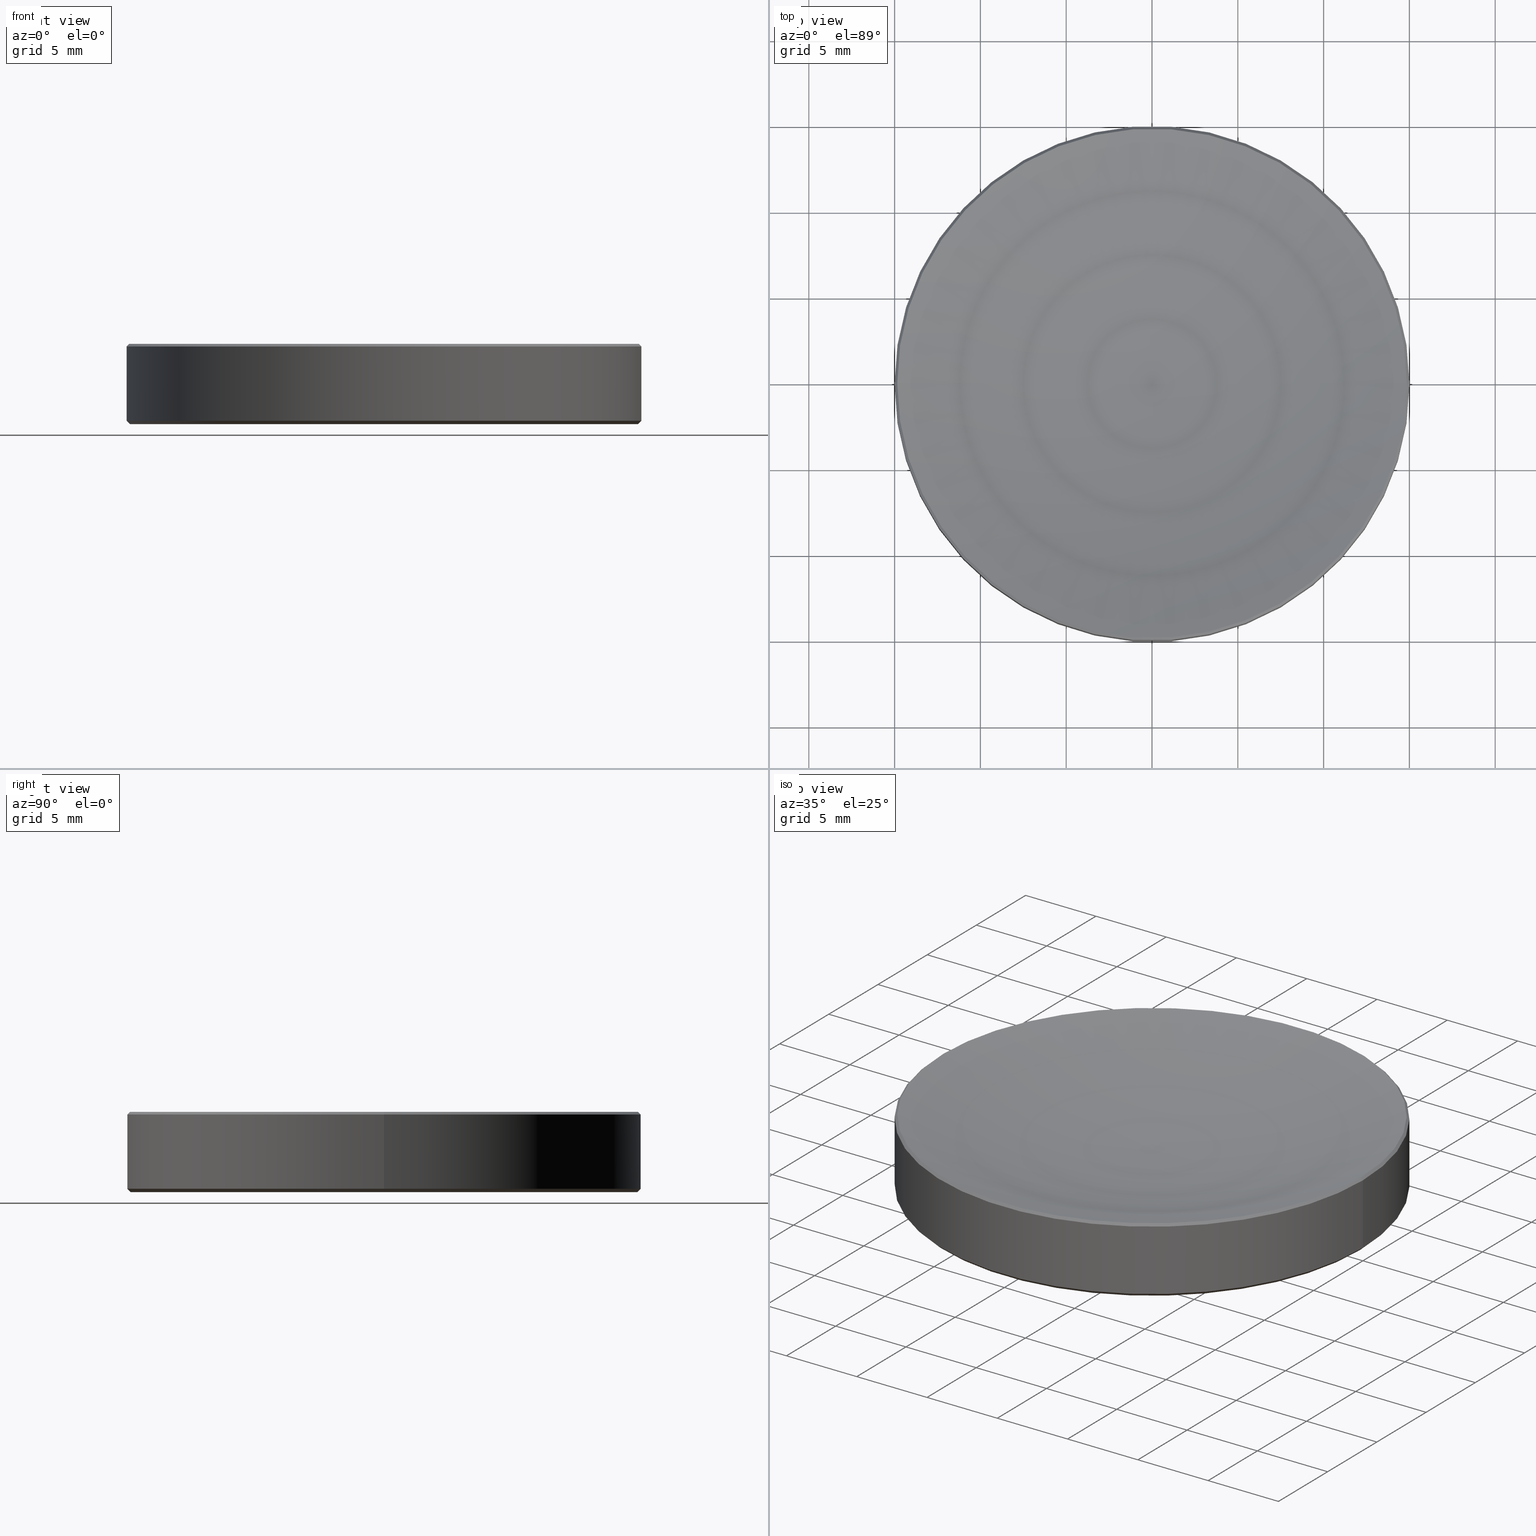
[diagram: canonical four-view strip — front | top / right | iso, engineering-drawing reading convention]
A machine part, canonical four-view strip (front | top / right | iso — engineering-drawing reading convention). The complete STEP part file that produces these views, byte-faithful:
ISO-10303-21;
HEADER;
FILE_DESCRIPTION (( 'STEP AP214' ),
    '1' );
FILE_NAME ('GL13-030-100.STEP',
    '2022-10-25T13:46:39',
    ( '' ),
    ( '' ),
    'SwSTEP 2.0',
    'SolidWorks 2022',
    '' );
FILE_SCHEMA (( 'AUTOMOTIVE_DESIGN' ));
ENDSEC;

DATA;
#1 = DIRECTION ( 'NONE',  ( 0.7071067811865036079, 8.659560562354395447E-17, -0.7071067811865914265 ) ) ;
#2 = CIRCLE ( 'NONE', #157, 15.00000000000000000 ) ;
#3 = FACE_OUTER_BOUND ( 'NONE', #122, .T. ) ;
#4 = CARTESIAN_POINT ( 'NONE',  ( 0.000000000000000000, 0.000000000000000000, 0.1999999999999996503 ) ) ;
#5 = AXIS2_PLACEMENT_3D ( 'NONE', #37, #16, #208 ) ;
#6 = EDGE_CURVE ( 'NONE', #165, #242, #209, .T. ) ;
#7 = CARTESIAN_POINT ( 'NONE',  ( 15.00000000000000000, 0.000000000000000000, 0.1999999999999996503 ) ) ;
#8 = DIRECTION ( 'NONE',  ( 0.7071067811865474617, 0.000000000000000000, 0.7071067811865474617 ) ) ;
#9 = ORIENTED_EDGE ( 'NONE', *, *, #105, .F. ) ;
#10 = FILL_AREA_STYLE_COLOUR ( '', #76 ) ;
#11 = UNCERTAINTY_MEASURE_WITH_UNIT (LENGTH_MEASURE( 1.000000000000000082E-05 ), #23, 'distance_accuracy_value', 'NONE');
#12 = CARTESIAN_POINT ( 'NONE',  ( 0.000000000000000000, 0.000000000000000000, 2.500000000000000000 ) ) ;
#13 = AXIS2_PLACEMENT_3D ( 'NONE', #213, #68, #85 ) ;
#14 = DIRECTION ( 'NONE',  ( -0.000000000000000000, -0.000000000000000000, 1.000000000000000000 ) ) ;
#15 = AXIS2_PLACEMENT_3D ( 'NONE', #238, #198, #199 ) ;
#16 = DIRECTION ( 'NONE',  ( -0.000000000000000000, -0.000000000000000000, 1.000000000000000000 ) ) ;
#17 = ORIENTED_EDGE ( 'NONE', *, *, #228, .T. ) ;
#18 = EDGE_LOOP ( 'NONE', ( #9, #176, #17 ) ) ;
#19 = EDGE_CURVE ( 'NONE', #74, #169, #34, .T. ) ;
#20 = CARTESIAN_POINT ( 'NONE',  ( 14.84640391126098180, 0.000000000000000000, 4.683596088739042429 ) ) ;
#21 = CIRCLE ( 'NONE', #62, 15.00000000000000000 ) ;
#22 = DIRECTION ( 'NONE',  ( 0.000000000000000000, -1.000000000000000000, 0.000000000000000000 ) ) ;
#23 =( LENGTH_UNIT ( ) NAMED_UNIT ( * ) SI_UNIT ( .MILLI., .METRE. ) );
#24 = DIRECTION ( 'NONE',  ( -1.000000000000000000, 0.000000000000000000, 0.000000000000000000 ) ) ;
#25 = PRESENTATION_LAYER_ASSIGNMENT (  '', '', ( #215 ) ) ;
#26 = SURFACE_SIDE_STYLE ('',( #49 ) ) ;
#27 = EDGE_CURVE ( 'NONE', #169, #91, #210, .T. ) ;
#28 =( NAMED_UNIT ( * ) SI_UNIT ( $, .STERADIAN. ) SOLID_ANGLE_UNIT ( ) );
#29 = MECHANICAL_DESIGN_GEOMETRIC_PRESENTATION_REPRESENTATION (  '', ( #263 ), #100 ) ;
#30 = ORIENTED_EDGE ( 'NONE', *, *, #214, .F. ) ;
#31 = DIRECTION ( 'NONE',  ( -0.000000000000000000, -0.000000000000000000, 1.000000000000000000 ) ) ;
#32 = DIRECTION ( 'NONE',  ( 0.000000000000000000, 0.000000000000000000, 1.000000000000000000 ) ) ;
#33 = SHAPE_DEFINITION_REPRESENTATION ( #180, #46 ) ;
#34 = CIRCLE ( 'NONE', #70, 14.80000000000000071 ) ;
#35 = ORIENTED_EDGE ( 'NONE', *, *, #6, .T. ) ;
#36 = ADVANCED_FACE ( 'NONE', ( #226 ), #125, .T. ) ;
#37 = CARTESIAN_POINT ( 'NONE',  ( 0.000000000000000000, 0.000000000000000000, 4.683596088739042429 ) ) ;
#38 = ORIENTED_EDGE ( 'NONE', *, *, #197, .F. ) ;
#39 = ORIENTED_EDGE ( 'NONE', *, *, #137, .F. ) ;
#40 = COLOUR_RGB ( '',1.000000000000000000, 1.000000000000000000, 1.000000000000000000 ) ;
#41 = EDGE_CURVE ( 'NONE', #91, #80, #21, .T. ) ;
#42 = VERTEX_POINT ( 'NONE', #262 ) ;
#43 = DIRECTION ( 'NONE',  ( -0.000000000000000000, -0.000000000000000000, 1.000000000000000000 ) ) ;
#44 = CARTESIAN_POINT ( 'NONE',  ( 0.000000000000000000, 0.000000000000000000, 4.529999999999985150 ) ) ;
#45 = CARTESIAN_POINT ( 'NONE',  ( 0.01138314681477931023, -1.394033431094387055E-18, 54.13999874539084800 ) ) ;
#46 = ADVANCED_BREP_SHAPE_REPRESENTATION ( 'GL13-030-100', ( #159, #250 ), #217 ) ;
#47 = CIRCLE ( 'NONE', #232, 51.64000000000000057 ) ;
#48 = AXIS2_PLACEMENT_3D ( 'NONE', #52, #138, #51 ) ;
#49 = SURFACE_STYLE_FILL_AREA ( #95 ) ;
#50 =( LENGTH_UNIT ( ) NAMED_UNIT ( * ) SI_UNIT ( .MILLI., .METRE. ) );
#51 = DIRECTION ( 'NONE',  ( 1.000000000000000000, 0.000000000000000000, 0.000000000000000000 ) ) ;
#52 = CARTESIAN_POINT ( 'NONE',  ( 0.000000000000000000, 0.000000000000000000, 54.13999874539084800 ) ) ;
#53 = PRODUCT_DEFINITION ( 'δ֪', '', #56, #92 ) ;
#54 = AXIS2_PLACEMENT_3D ( 'NONE', #181, #31, #115 ) ;
#55 = PRODUCT_CONTEXT ( 'NONE', #207, 'mechanical' ) ;
#56 = PRODUCT_DEFINITION_FORMATION_WITH_SPECIFIED_SOURCE ( '�κ�', '', #79, .NOT_KNOWN. ) ;
#57 = ORIENTED_EDGE ( 'NONE', *, *, #41, .T. ) ;
#58 = EDGE_CURVE ( 'NONE', #42, #99, #77, .T. ) ;
#59 = DIRECTION ( 'NONE',  ( -0.7071067811865036079, 0.000000000000000000, -0.7071067811865914265 ) ) ;
#60 = EDGE_LOOP ( 'NONE', ( #164, #264, #187, #124 ) ) ;
#61 = CARTESIAN_POINT ( 'NONE',  ( -15.00000000000000000, 1.836970198721029589E-15, 0.1999999999999996503 ) ) ;
#62 = AXIS2_PLACEMENT_3D ( 'NONE', #147, #75, #222 ) ;
#63 = AXIS2_PLACEMENT_3D ( 'NONE', #44, #154, #24 ) ;
#64 = CARTESIAN_POINT ( 'NONE',  ( -15.00000000000000000, 1.836970198721029589E-15, 4.529999999999985150 ) ) ;
#65 = AXIS2_PLACEMENT_3D ( 'NONE', #175, #257, #179 ) ;
#66 = DIRECTION ( 'NONE',  ( 1.000000000000000000, 0.000000000000000000, 0.000000000000000000 ) ) ;
#67 = DIRECTION ( 'NONE',  ( -1.000000000000000000, 1.224646799147353207E-16, 0.000000000000000000 ) ) ;
#68 = DIRECTION ( 'NONE',  ( 0.000000000000000000, 0.000000000000000000, -1.000000000000000000 ) ) ;
#69 = EDGE_CURVE ( 'NONE', #42, #165, #123, .T. ) ;
#70 = AXIS2_PLACEMENT_3D ( 'NONE', #167, #246, #245 ) ;
#71 = DIRECTION ( 'NONE',  ( -0.000000000000000000, -0.000000000000000000, 1.000000000000000000 ) ) ;
#72 = PLANE ( 'NONE',  #15 ) ;
#73 = AXIS2_PLACEMENT_3D ( 'NONE', #108, #87, #212 ) ;
#74 = VERTEX_POINT ( 'NONE', #101 ) ;
#75 = DIRECTION ( 'NONE',  ( -0.000000000000000000, -0.000000000000000000, 1.000000000000000000 ) ) ;
#76 = COLOUR_RGB ( '',1.000000000000000000, 1.000000000000000000, 1.000000000000000000 ) ;
#77 = LINE ( 'NONE', #243, #133 ) ;
#78 = ORIENTED_EDGE ( 'NONE', *, *, #168, .T. ) ;
#79 = PRODUCT ( 'GL13-030-100', 'GL13-030-100', '', ( #55 ) ) ;
#80 = VERTEX_POINT ( 'NONE', #171 ) ;
#81 = ORIENTED_EDGE ( 'NONE', *, *, #214, .T. ) ;
#82 = SURFACE_SIDE_STYLE ('',( #172 ) ) ;
#83 = VECTOR ( 'NONE', #8, 1000.000000000000114 ) ;
#84 = ADVANCED_FACE ( 'NONE', ( #253 ), #203, .T. ) ;
#85 = DIRECTION ( 'NONE',  ( -1.000000000000000000, 0.000000000000000000, 0.000000000000000000 ) ) ;
#86 = FACE_OUTER_BOUND ( 'NONE', #186, .T. ) ;
#87 = DIRECTION ( 'NONE',  ( -0.000000000000000000, -0.000000000000000000, 1.000000000000000000 ) ) ;
#88 = DIRECTION ( 'NONE',  ( -0.000000000000000000, -0.000000000000000000, 1.000000000000000000 ) ) ;
#89 = ADVANCED_FACE ( 'NONE', ( #251 ), #110, .T. ) ;
#90 =( NAMED_UNIT ( * ) PLANE_ANGLE_UNIT ( ) SI_UNIT ( $, .RADIAN. ) );
#91 = VERTEX_POINT ( 'NONE', #249 ) ;
#92 = PRODUCT_DEFINITION_CONTEXT ( 'detailed design', #218, 'design' ) ;
#93 = DIRECTION ( 'NONE',  ( 1.000000000000000000, 0.000000000000000000, 0.000000000000000000 ) ) ;
#94 = ORIENTED_EDGE ( 'NONE', *, *, #58, .F. ) ;
#95 = FILL_AREA_STYLE ('',( #10 ) ) ;
#96 = DIRECTION ( 'NONE',  ( -1.000000000000000000, 0.000000000000000000, 0.000000000000000000 ) ) ;
#97 = EDGE_CURVE ( 'NONE', #91, #99, #211, .T. ) ;
#98 = DIRECTION ( 'NONE',  ( 1.000000000000000000, 0.000000000000000000, 0.000000000000000000 ) ) ;
#99 = VERTEX_POINT ( 'NONE', #64 ) ;
#100 =( GEOMETRIC_REPRESENTATION_CONTEXT ( 3 ) GLOBAL_UNCERTAINTY_ASSIGNED_CONTEXT ( ( #259 ) ) GLOBAL_UNIT_ASSIGNED_CONTEXT ( ( #258, #177, #28 ) ) REPRESENTATION_CONTEXT ( 'NONE', 'WORKASPACE' ) );
#101 = CARTESIAN_POINT ( 'NONE',  ( 14.80000000000000071, 0.000000000000000000, 9.184850993605147944E-16 ) ) ;
#102 = ORIENTED_EDGE ( 'NONE', *, *, #6, .F. ) ;
#103 = ORIENTED_EDGE ( 'NONE', *, *, #205, .T. ) ;
#104 = LINE ( 'NONE', #7, #83 ) ;
#105 = EDGE_CURVE ( 'NONE', #139, #42, #47, .T. ) ;
#106 = CARTESIAN_POINT ( 'NONE',  ( -14.80000000000000071, 1.824723730729555837E-15, 9.184850993605147944E-16 ) ) ;
#107 = CLOSED_SHELL ( 'NONE', ( #239, #116, #89, #185, #155, #36, #248, #84, #170 ) ) ;
#108 = CARTESIAN_POINT ( 'NONE',  ( 0.000000000000000000, 0.000000000000000000, 54.13999874539084800 ) ) ;
#109 = DIRECTION ( 'NONE',  ( 1.000000000000000000, 0.000000000000000000, 0.000000000000000000 ) ) ;
#110 = CYLINDRICAL_SURFACE ( 'NONE', #202, 15.00000000000000000 ) ;
#111 = MECHANICAL_DESIGN_GEOMETRIC_PRESENTATION_REPRESENTATION (  '', ( #215 ), #261 ) ;
#112 = CARTESIAN_POINT ( 'NONE',  ( 15.00000000000000000, 0.000000000000000000, 4.529999999999985150 ) ) ;
#113 = PRESENTATION_LAYER_ASSIGNMENT (  '', '', ( #263 ) ) ;
#114 = FACE_OUTER_BOUND ( 'NONE', #156, .T. ) ;
#115 = DIRECTION ( 'NONE',  ( 1.000000000000000000, 0.000000000000000000, 0.000000000000000000 ) ) ;
#116 = ADVANCED_FACE ( 'NONE', ( #86 ), #260, .T. ) ;
#117 = DIRECTION ( 'NONE',  ( 1.000000000000000000, 0.000000000000000000, 0.000000000000000000 ) ) ;
#118 = AXIS2_PLACEMENT_3D ( 'NONE', #220, #71, #93 ) ;
#119 = UNCERTAINTY_MEASURE_WITH_UNIT (LENGTH_MEASURE( 1.000000000000000082E-05 ), #50, 'distance_accuracy_value', 'NONE');
#120 = ORIENTED_EDGE ( 'NONE', *, *, #105, .T. ) ;
#121 = ORIENTED_EDGE ( 'NONE', *, *, #69, .T. ) ;
#122 = EDGE_LOOP ( 'NONE', ( #102, #145, #136, #30 ) ) ;
#123 = CIRCLE ( 'NONE', #5, 14.84640391126096759 ) ;
#124 = ORIENTED_EDGE ( 'NONE', *, *, #41, .F. ) ;
#125 = CYLINDRICAL_SURFACE ( 'NONE', #178, 15.00000000000000000 ) ;
#126 = VECTOR ( 'NONE', #160, 1000.000000000000000 ) ;
#127 = CARTESIAN_POINT ( 'NONE',  ( 0.000000000000000000, 0.000000000000000000, 2.500000000000000000 ) ) ;
#128 = PRESENTATION_STYLE_ASSIGNMENT (( #227 ) ) ;
#129 = FACE_OUTER_BOUND ( 'NONE', #18, .T. ) ;
#130 = DIRECTION ( 'NONE',  ( 1.000000000000000000, 0.000000000000000000, 0.000000000000000000 ) ) ;
#131 = CARTESIAN_POINT ( 'NONE',  ( 15.00000000000000000, 0.000000000000000000, 2.500000000000000000 ) ) ;
#132 = VECTOR ( 'NONE', #152, 1000.000000000000000 ) ;
#133 = VECTOR ( 'NONE', #59, 1000.000000000000000 ) ;
#134 = AXIS2_PLACEMENT_3D ( 'NONE', #190, #254, #130 ) ;
#135 = SURFACE_STYLE_USAGE ( .BOTH. , #26 ) ;
#136 = ORIENTED_EDGE ( 'NONE', *, *, #58, .T. ) ;
#137 = EDGE_CURVE ( 'NONE', #99, #242, #194, .T. ) ;
#138 = DIRECTION ( 'NONE',  ( -0.000000000000000000, -0.000000000000000000, 1.000000000000000000 ) ) ;
#139 = VERTEX_POINT ( 'NONE', #150 ) ;
#140 =( NAMED_UNIT ( * ) SI_UNIT ( $, .STERADIAN. ) SOLID_ANGLE_UNIT ( ) );
#141 = LINE ( 'NONE', #131, #126 ) ;
#142 = ORIENTED_EDGE ( 'NONE', *, *, #205, .F. ) ;
#143 = ORIENTED_EDGE ( 'NONE', *, *, #97, .F. ) ;
#144 = VECTOR ( 'NONE', #221, 1000.000000000000114 ) ;
#145 = ORIENTED_EDGE ( 'NONE', *, *, #69, .F. ) ;
#146 = ORIENTED_EDGE ( 'NONE', *, *, #27, .T. ) ;
#147 = CARTESIAN_POINT ( 'NONE',  ( 0.000000000000000000, 0.000000000000000000, 0.1999999999999996503 ) ) ;
#148 = EDGE_LOOP ( 'NONE', ( #103, #224, #265, #206 ) ) ;
#149 = EDGE_CURVE ( 'NONE', #139, #165, #225, .T. ) ;
#150 = CARTESIAN_POINT ( 'NONE',  ( 0.000000000000000000, 0.000000000000000000, 2.500000000000000000 ) ) ;
#151 = DIRECTION ( 'NONE',  ( -0.000000000000000000, -0.000000000000000000, 1.000000000000000000 ) ) ;
#152 = DIRECTION ( 'NONE',  ( -0.000000000000000000, -0.000000000000000000, 1.000000000000000000 ) ) ;
#153 = CARTESIAN_POINT ( 'NONE',  ( -0.01138314681477931023, 0.000000000000000000, 54.13999874539084800 ) ) ;
#154 = DIRECTION ( 'NONE',  ( 0.000000000000000000, 0.000000000000000000, -1.000000000000000000 ) ) ;
#155 = ADVANCED_FACE ( 'NONE', ( #129 ), #196, .F. ) ;
#156 = EDGE_LOOP ( 'NONE', ( #188, #78 ) ) ;
#157 = AXIS2_PLACEMENT_3D ( 'NONE', #236, #219, #96 ) ;
#158 = FACE_OUTER_BOUND ( 'NONE', #189, .T. ) ;
#159 = MANIFOLD_SOLID_BREP ( '����2', #107 ) ;
#160 = DIRECTION ( 'NONE',  ( -0.000000000000000000, -0.000000000000000000, 1.000000000000000000 ) ) ;
#161 = AXIS2_PLACEMENT_3D ( 'NONE', #230, #151, #173 ) ;
#162 = TOROIDAL_SURFACE ( 'NONE', #48, -0.01138314681477931023, 51.64000000000000057 ) ;
#163 = PRODUCT_RELATED_PRODUCT_CATEGORY ( 'part', '', ( #79 ) ) ;
#164 = ORIENTED_EDGE ( 'NONE', *, *, #27, .F. ) ;
#165 = VERTEX_POINT ( 'NONE', #20 ) ;
#166 = CARTESIAN_POINT ( 'NONE',  ( 14.84640391126096937, 1.818160102877448966E-15, 4.683596088739035324 ) ) ;
#167 = CARTESIAN_POINT ( 'NONE',  ( 0.000000000000000000, 0.000000000000000000, 9.184850993605147944E-16 ) ) ;
#168 = EDGE_CURVE ( 'NONE', #169, #74, #247, .T. ) ;
#169 = VERTEX_POINT ( 'NONE', #106 ) ;
#170 = ADVANCED_FACE ( 'NONE', ( #3 ), #235, .T. ) ;
#171 = CARTESIAN_POINT ( 'NONE',  ( 15.00000000000000000, 0.000000000000000000, 0.1999999999999996503 ) ) ;
#172 = SURFACE_STYLE_FILL_AREA ( #174 ) ;
#173 = DIRECTION ( 'NONE',  ( 1.000000000000000000, 0.000000000000000000, 0.000000000000000000 ) ) ;
#174 = FILL_AREA_STYLE ('',( #192 ) ) ;
#175 = CARTESIAN_POINT ( 'NONE',  ( 0.000000000000000000, 0.000000000000000000, 4.683596088739035324 ) ) ;
#176 = ORIENTED_EDGE ( 'NONE', *, *, #149, .T. ) ;
#177 =( NAMED_UNIT ( * ) PLANE_ANGLE_UNIT ( ) SI_UNIT ( $, .RADIAN. ) );
#178 = AXIS2_PLACEMENT_3D ( 'NONE', #12, #14, #98 ) ;
#179 = DIRECTION ( 'NONE',  ( -1.000000000000000000, 0.000000000000000000, 0.000000000000000000 ) ) ;
#180 = PRODUCT_DEFINITION_SHAPE ( 'NONE', 'NONE',  #53 ) ;
#181 = CARTESIAN_POINT ( 'NONE',  ( 0.000000000000000000, 0.000000000000000000, 4.683596088739042429 ) ) ;
#182 = AXIS2_PLACEMENT_3D ( 'NONE', #153, #22, #195 ) ;
#183 = EDGE_LOOP ( 'NONE', ( #266, #120, #121 ) ) ;
#184 = CONICAL_SURFACE ( 'NONE', #65, 14.84640391126096937, 0.7853981633973862175 ) ;
#185 = ADVANCED_FACE ( 'NONE', ( #231 ), #162, .F. ) ;
#186 = EDGE_LOOP ( 'NONE', ( #244, #146, #142, #38 ) ) ;
#187 = ORIENTED_EDGE ( 'NONE', *, *, #197, .T. ) ;
#188 = ORIENTED_EDGE ( 'NONE', *, *, #19, .T. ) ;
#189 = EDGE_LOOP ( 'NONE', ( #223, #35, #39, #94 ) ) ;
#190 = CARTESIAN_POINT ( 'NONE',  ( 0.000000000000000000, 0.000000000000000000, 9.184850993605147944E-16 ) ) ;
#191 =( NAMED_UNIT ( * ) SI_UNIT ( $, .STERADIAN. ) SOLID_ANGLE_UNIT ( ) );
#192 = FILL_AREA_STYLE_COLOUR ( '', #40 ) ;
#193 = CARTESIAN_POINT ( 'NONE',  ( -15.00000000000000000, 1.836970198721029589E-15, 2.500000000000000000 ) ) ;
#194 = CIRCLE ( 'NONE', #63, 15.00000000000000000 ) ;
#195 = DIRECTION ( 'NONE',  ( 0.000000000000000000, 0.000000000000000000, -1.000000000000000000 ) ) ;
#196 = TOROIDAL_SURFACE ( 'NONE', #73, -0.01138314681477931023, 51.64000000000000057 ) ;
#197 = EDGE_CURVE ( 'NONE', #74, #80, #104, .T. ) ;
#198 = DIRECTION ( 'NONE',  ( 0.000000000000000000, -0.000000000000000000, 1.000000000000000000 ) ) ;
#199 = DIRECTION ( 'NONE',  ( 1.000000000000000000, 0.000000000000000000, 0.000000000000000000 ) ) ;
#200 = EDGE_LOOP ( 'NONE', ( #143, #57, #237, #81 ) ) ;
#201 = CARTESIAN_POINT ( 'NONE',  ( 0.000000000000000000, 0.000000000000000000, 0.000000000000000000 ) ) ;
#202 = AXIS2_PLACEMENT_3D ( 'NONE', #127, #43, #109 ) ;
#203 = CONICAL_SURFACE ( 'NONE', #234, 15.00000000000000000, 0.7853981633974482790 ) ;
#204 = CIRCLE ( 'NONE', #118, 15.00000000000000000 ) ;
#205 = EDGE_CURVE ( 'NONE', #80, #91, #204, .T. ) ;
#206 = ORIENTED_EDGE ( 'NONE', *, *, #256, .F. ) ;
#207 = APPLICATION_CONTEXT ( 'automotive_design' ) ;
#208 = DIRECTION ( 'NONE',  ( 1.000000000000000000, 0.000000000000000000, 0.000000000000000000 ) ) ;
#209 = LINE ( 'NONE', #166, #255 ) ;
#210 = LINE ( 'NONE', #61, #144 ) ;
#211 = LINE ( 'NONE', #193, #132 ) ;
#212 = DIRECTION ( 'NONE',  ( 1.000000000000000000, 0.000000000000000000, 0.000000000000000000 ) ) ;
#213 = CARTESIAN_POINT ( 'NONE',  ( 0.000000000000000000, 0.000000000000000000, 4.683596088739035324 ) ) ;
#214 = EDGE_CURVE ( 'NONE', #242, #99, #2, .T. ) ;
#215 = STYLED_ITEM ( 'NONE', ( #128 ), #159 ) ;
#216 = PRESENTATION_STYLE_ASSIGNMENT (( #135 ) ) ;
#217 =( GEOMETRIC_REPRESENTATION_CONTEXT ( 3 ) GLOBAL_UNCERTAINTY_ASSIGNED_CONTEXT ( ( #119 ) ) GLOBAL_UNIT_ASSIGNED_CONTEXT ( ( #50, #90, #140 ) ) REPRESENTATION_CONTEXT ( 'NONE', 'WORKASPACE' ) );
#218 = APPLICATION_CONTEXT ( 'automotive_design' ) ;
#219 = DIRECTION ( 'NONE',  ( 0.000000000000000000, 0.000000000000000000, -1.000000000000000000 ) ) ;
#220 = CARTESIAN_POINT ( 'NONE',  ( 0.000000000000000000, 0.000000000000000000, 0.1999999999999996503 ) ) ;
#221 = DIRECTION ( 'NONE',  ( -0.7071067811865474617, 8.659560562354932858E-17, 0.7071067811865474617 ) ) ;
#222 = DIRECTION ( 'NONE',  ( 1.000000000000000000, 0.000000000000000000, 0.000000000000000000 ) ) ;
#223 = ORIENTED_EDGE ( 'NONE', *, *, #228, .F. ) ;
#224 = ORIENTED_EDGE ( 'NONE', *, *, #97, .T. ) ;
#225 = CIRCLE ( 'NONE', #182, 51.64000000000000057 ) ;
#226 = FACE_OUTER_BOUND ( 'NONE', #200, .T. ) ;
#227 = SURFACE_STYLE_USAGE ( .BOTH. , #82 ) ;
#228 = EDGE_CURVE ( 'NONE', #165, #42, #241, .T. ) ;
#229 = DIRECTION ( 'NONE',  ( 1.224646799147353207E-16, 1.000000000000000000, 0.000000000000000000 ) ) ;
#230 = CARTESIAN_POINT ( 'NONE',  ( 0.000000000000000000, 0.000000000000000000, 0.1999999999999996503 ) ) ;
#231 = FACE_OUTER_BOUND ( 'NONE', #183, .T. ) ;
#232 = AXIS2_PLACEMENT_3D ( 'NONE', #45, #229, #67 ) ;
#233 = APPLICATION_PROTOCOL_DEFINITION ( 'draft international standard', 'automotive_design', 1998, #207 ) ;
#234 = AXIS2_PLACEMENT_3D ( 'NONE', #4, #88, #66 ) ;
#235 = CONICAL_SURFACE ( 'NONE', #13, 14.84640391126096937, 0.7853981633973862175 ) ;
#236 = CARTESIAN_POINT ( 'NONE',  ( 0.000000000000000000, 0.000000000000000000, 4.529999999999985150 ) ) ;
#237 = ORIENTED_EDGE ( 'NONE', *, *, #256, .T. ) ;
#238 = CARTESIAN_POINT ( 'NONE',  ( 0.000000000000000000, 0.000000000000000000, 9.184850993605147944E-16 ) ) ;
#239 = ADVANCED_FACE ( 'NONE', ( #158 ), #184, .T. ) ;
#240 = APPLICATION_PROTOCOL_DEFINITION ( 'draft international standard', 'automotive_design', 1998, #218 ) ;
#241 = CIRCLE ( 'NONE', #54, 14.84640391126096759 ) ;
#242 = VERTEX_POINT ( 'NONE', #112 ) ;
#243 = CARTESIAN_POINT ( 'NONE',  ( -14.84640391126096937, 0.000000000000000000, 4.683596088739035324 ) ) ;
#244 = ORIENTED_EDGE ( 'NONE', *, *, #168, .F. ) ;
#245 = DIRECTION ( 'NONE',  ( 1.000000000000000000, 0.000000000000000000, 0.000000000000000000 ) ) ;
#246 = DIRECTION ( 'NONE',  ( 0.000000000000000000, 0.000000000000000000, -1.000000000000000000 ) ) ;
#247 = CIRCLE ( 'NONE', #134, 14.80000000000000071 ) ;
#248 = ADVANCED_FACE ( 'NONE', ( #114 ), #72, .F. ) ;
#249 = CARTESIAN_POINT ( 'NONE',  ( -15.00000000000000000, 1.836970198721029589E-15, 0.1999999999999996503 ) ) ;
#250 = AXIS2_PLACEMENT_3D ( 'NONE', #201, #32, #117 ) ;
#251 = FACE_OUTER_BOUND ( 'NONE', #148, .T. ) ;
#252 =( NAMED_UNIT ( * ) PLANE_ANGLE_UNIT ( ) SI_UNIT ( $, .RADIAN. ) );
#253 = FACE_OUTER_BOUND ( 'NONE', #60, .T. ) ;
#254 = DIRECTION ( 'NONE',  ( 0.000000000000000000, 0.000000000000000000, -1.000000000000000000 ) ) ;
#255 = VECTOR ( 'NONE', #1, 1000.000000000000000 ) ;
#256 = EDGE_CURVE ( 'NONE', #80, #242, #141, .T. ) ;
#257 = DIRECTION ( 'NONE',  ( 0.000000000000000000, 0.000000000000000000, -1.000000000000000000 ) ) ;
#258 =( LENGTH_UNIT ( ) NAMED_UNIT ( * ) SI_UNIT ( .MILLI., .METRE. ) );
#259 = UNCERTAINTY_MEASURE_WITH_UNIT (LENGTH_MEASURE( 1.000000000000000082E-05 ), #258, 'distance_accuracy_value', 'NONE');
#260 = CONICAL_SURFACE ( 'NONE', #161, 15.00000000000000000, 0.7853981633974482790 ) ;
#261 =( GEOMETRIC_REPRESENTATION_CONTEXT ( 3 ) GLOBAL_UNCERTAINTY_ASSIGNED_CONTEXT ( ( #11 ) ) GLOBAL_UNIT_ASSIGNED_CONTEXT ( ( #23, #252, #191 ) ) REPRESENTATION_CONTEXT ( 'NONE', 'WORKASPACE' ) );
#262 = CARTESIAN_POINT ( 'NONE',  ( -14.84640391126098180, 1.818160102877450543E-15, 4.683596088739042429 ) ) ;
#263 = STYLED_ITEM ( 'NONE', ( #216 ), #46 ) ;
#264 = ORIENTED_EDGE ( 'NONE', *, *, #19, .F. ) ;
#265 = ORIENTED_EDGE ( 'NONE', *, *, #137, .T. ) ;
#266 = ORIENTED_EDGE ( 'NONE', *, *, #149, .F. ) ;
ENDSEC;
END-ISO-10303-21;
